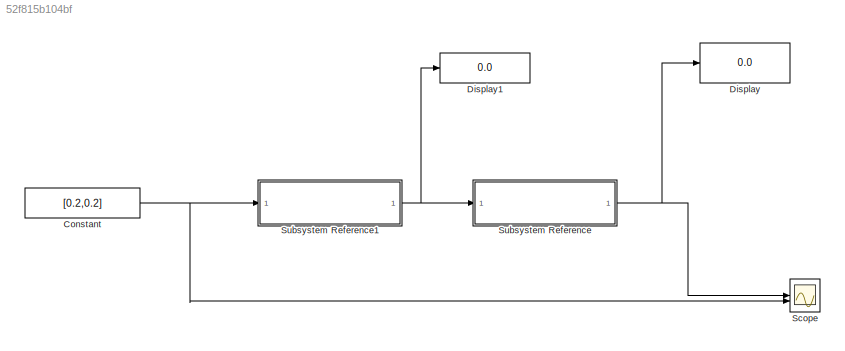
MODEL slx_52f815b104bf
KIND model
CONFIG AbsTol = auto
CONFIG EnableMultiTasking = on
CONFIG FixedStep = auto
CONFIG MaxStep = auto
CONFIG MinStep = auto
CONFIG RelTol = 1e-3
CONFIG SampleTimeConstraint = Unconstrained
CONFIG SolverName = FixedStepAuto
CONFIG StartTime = 0.0
CONFIG StopTime = inf
BLOCK [Constant] Constant
  Value = [0.2,0.2]
BLOCK [Display] Display
  Decimation = 1
BLOCK [Display] Display1
  Decimation = 1
BLOCK [Scope] Scope
  Floating = off
  NumInputPorts = 2
  ScopeSpecificationString = Simulink.scopes.TimeScopeBlockCfg('CurrentConfiguration', extmgr.ConfigurationSet(extmgr.Configuration('Core','General UI',true),extmgr.Configuration('Core','Source UI',true),extmgr.Configuration('Sources','WiredSimulink',true),extmgr.Configuration('Visuals','Time Domain',true,'SerializedDisplays',{struct('MinYLimReal','-0.04727','MaxYLimReal','0.28534','YLabelReal','','MinYLimMag','0.00000','MaxY...<+1418ch>
BLOCK [SubSystem] Subsystem Reference
  ReferencedSubsystem = PieroFisico
BLOCK [SubSystem] Subsystem Reference1
  ReferencedSubsystem = ControllerBA
NET Constant:1 -> Scope:2, Subsystem Reference1:1
NET Subsystem Reference1:1 -> Display1:1, Subsystem Reference:1
NET Subsystem Reference:1 -> Display:1, Scope:1
note: NET lines group one-source signal fan-out (src -> all destinations, sorted); 1:1 wires keep LINE
